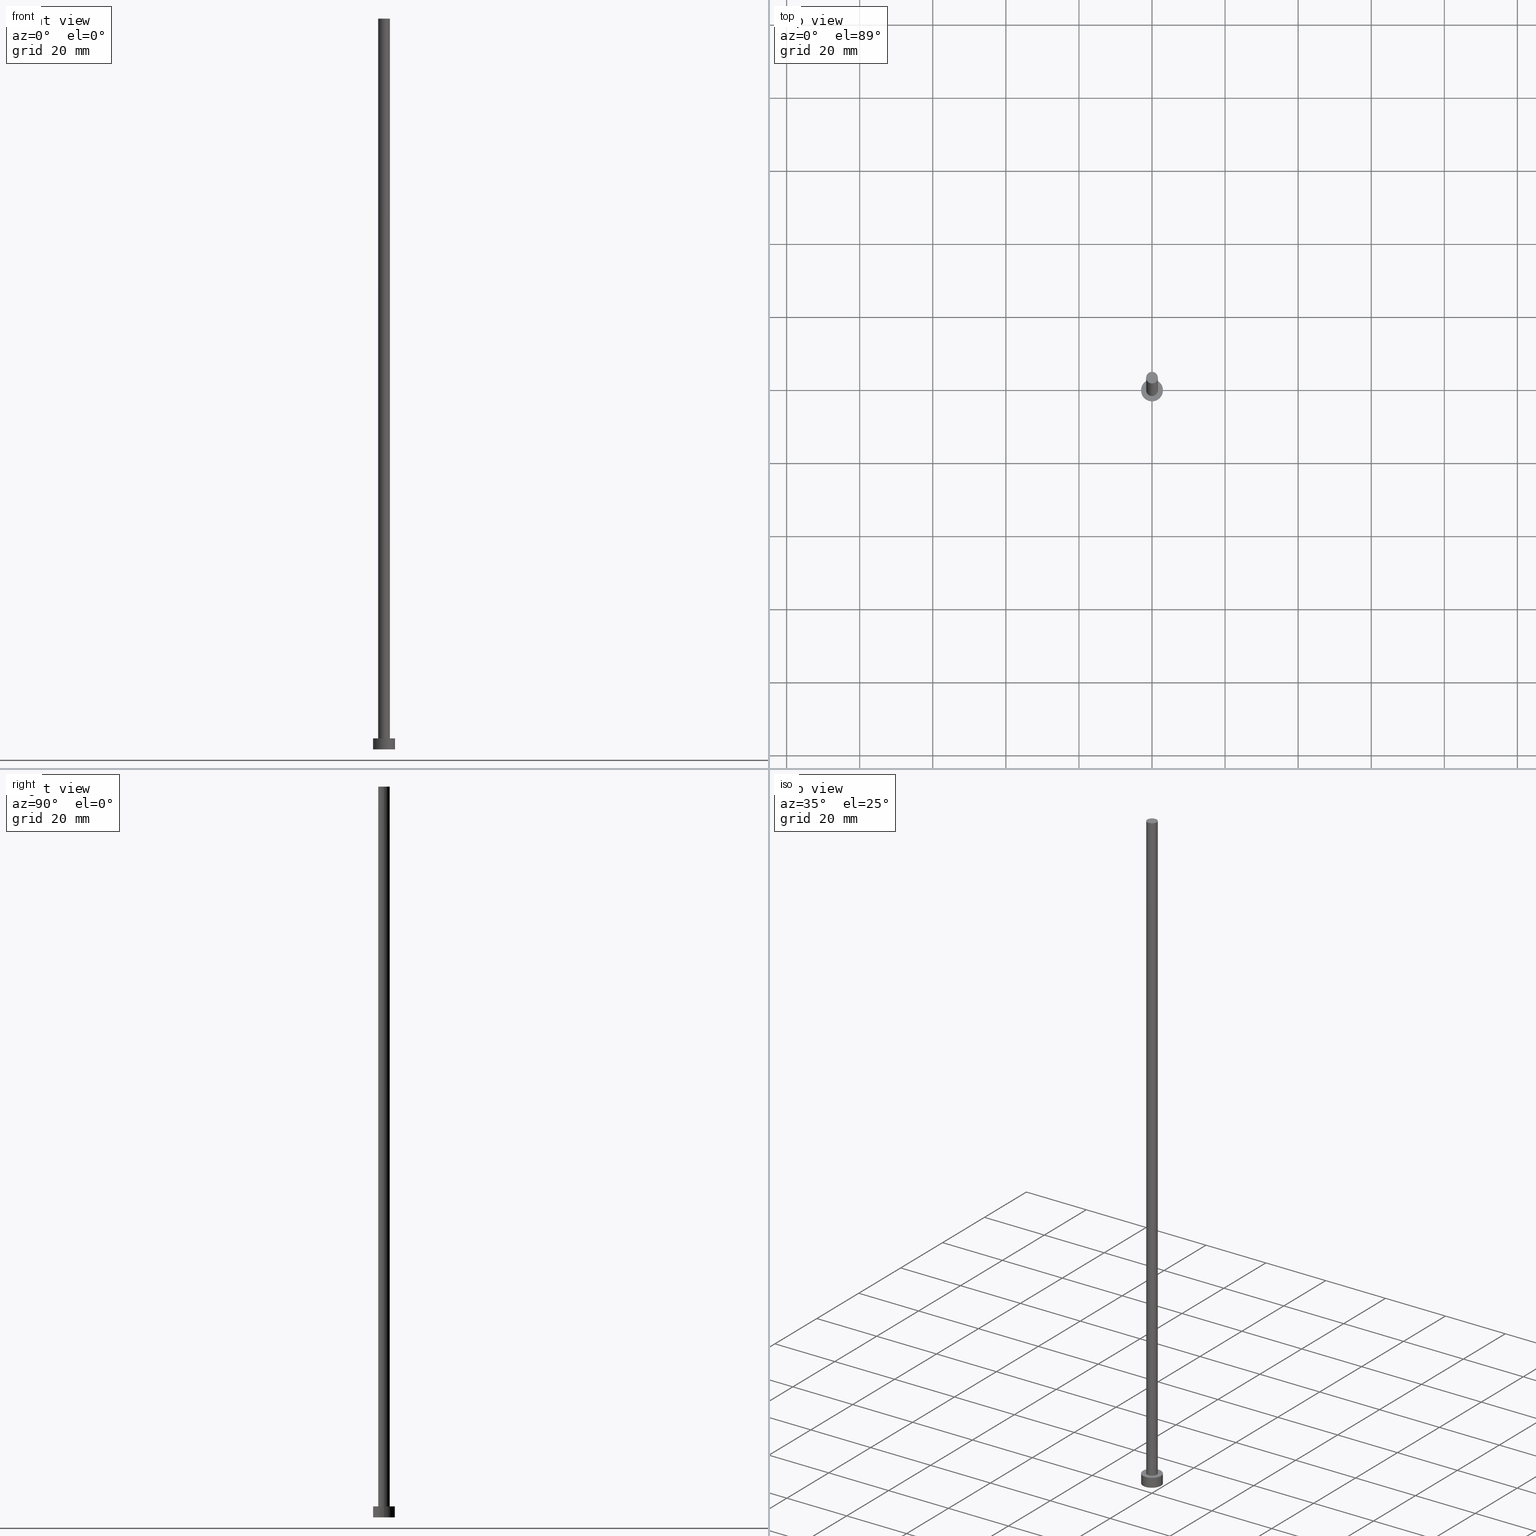
[diagram: canonical four-view strip — front | top / right | iso, engineering-drawing reading convention]
A machine part, canonical four-view strip (front | top / right | iso — engineering-drawing reading convention). The complete STEP part file that produces these views, byte-faithful:
ISO-10303-21;
HEADER;
FILE_DESCRIPTION (( 'STEP AP203' ),
    '1' );
FILE_NAME ('f816.STEP',
    '2023-02-13T16:25:23',
    ( '' ),
    ( '' ),
    'SwSTEP 2.0',
    'SolidWorks 2019',
    '' );
FILE_SCHEMA (( 'CONFIG_CONTROL_DESIGN' ));
ENDSEC;

DATA;
#1 = LINE ( 'NONE', #19, #232 ) ;
#2 = DIRECTION ( 'NONE',  ( 0.000000000000000000, 0.000000000000000000, 1.000000000000000000 ) ) ;
#3 = DESIGN_CONTEXT ( 'detailed design', #236, 'design' ) ;
#4 = DATE_AND_TIME ( #42, #21 ) ;
#5 = LOCAL_TIME ( 17, 25, 23.00000000000000000, #101 ) ;
#6 = DIRECTION ( 'NONE',  ( 0.000000000000000000, 0.000000000000000000, 1.000000000000000000 ) ) ;
#7 = CARTESIAN_POINT ( 'NONE',  ( -1.600000000000000089, 0.000000000000000000, 3.000000000000000000 ) ) ;
#8 = AXIS2_PLACEMENT_3D ( 'NONE', #157, #241, #59 ) ;
#9 = EDGE_LOOP ( 'NONE', ( #65, #58, #43, #142 ) ) ;
#10 = APPROVAL_ROLE ( '' ) ;
#11 = MANIFOLD_SOLID_BREP ( 'P�idat vysunut�m3', #194 ) ;
#12 = FACE_OUTER_BOUND ( 'NONE', #104, .T. ) ;
#13 = PRODUCT ( 'f816', 'f816', '', ( #227 ) ) ;
#14 = DIRECTION ( 'NONE',  ( -0.000000000000000000, -0.000000000000000000, -1.000000000000000000 ) ) ;
#15 = CC_DESIGN_DATE_AND_TIME_ASSIGNMENT ( #47, #120, ( #182 ) ) ;
#16 = AXIS2_PLACEMENT_3D ( 'NONE', #108, #69, #146 ) ;
#17 = DIRECTION ( 'NONE',  ( -0.000000000000000000, -0.000000000000000000, -1.000000000000000000 ) ) ;
#18 = DIRECTION ( 'NONE',  ( -0.000000000000000000, -0.000000000000000000, -1.000000000000000000 ) ) ;
#19 = CARTESIAN_POINT ( 'NONE',  ( 3.000000000000000444, 3.673940397442060361E-16, 3.000000000000000000 ) ) ;
#20 = EDGE_CURVE ( 'NONE', #168, #121, #180, .T. ) ;
#21 = LOCAL_TIME ( 17, 25, 23.00000000000000000, #151 ) ;
#22 = COORDINATED_UNIVERSAL_TIME_OFFSET ( 1, 0, .AHEAD. ) ;
#23 = APPROVAL_STATUS ( 'not_yet_approved' ) ;
#24 = ORIENTED_EDGE ( 'NONE', *, *, #238, .F. ) ;
#25 = CIRCLE ( 'NONE', #188, 3.000000000000000444 ) ;
#26 = ORIENTED_EDGE ( 'NONE', *, *, #150, .F. ) ;
#27 = ORIENTED_EDGE ( 'NONE', *, *, #20, .T. ) ;
#28 = CC_DESIGN_PERSON_AND_ORGANIZATION_ASSIGNMENT ( #57, #159, ( #13 ) ) ;
#29 = DIRECTION ( 'NONE',  ( -0.000000000000000000, -0.000000000000000000, -1.000000000000000000 ) ) ;
#30 = DIRECTION ( 'NONE',  ( -1.000000000000000000, 0.000000000000000000, 0.000000000000000000 ) ) ;
#31 = CC_DESIGN_DATE_AND_TIME_ASSIGNMENT ( #183, #179, ( #217 ) ) ;
#32 = AXIS2_PLACEMENT_3D ( 'NONE', #71, #131, #201 ) ;
#33 = CARTESIAN_POINT ( 'NONE',  ( -3.000000000000000444, 0.000000000000000000, 3.000000000000000000 ) ) ;
#34 = ORIENTED_EDGE ( 'NONE', *, *, #141, .T. ) ;
#35 = DIRECTION ( 'NONE',  ( -0.000000000000000000, -0.000000000000000000, -1.000000000000000000 ) ) ;
#36 = VECTOR ( 'NONE', #17, 1000.000000000000000 ) ;
#37 = CARTESIAN_POINT ( 'NONE',  ( 0.000000000000000000, 0.000000000000000000, 3.000000000000000000 ) ) ;
#38 = ADVANCED_FACE ( 'NONE', ( #153 ), #45, .T. ) ;
#39 = PERSON_AND_ORGANIZATION ( #252, #198 ) ;
#40 = CALENDAR_DATE ( 2023, 13, 2 ) ;
#41 = VERTEX_POINT ( 'NONE', #223 ) ;
#42 = CALENDAR_DATE ( 2023, 13, 2 ) ;
#43 = ORIENTED_EDGE ( 'NONE', *, *, #158, .T. ) ;
#44 = CALENDAR_DATE ( 2023, 13, 2 ) ;
#45 = CYLINDRICAL_SURFACE ( 'NONE', #8, 3.000000000000000444 ) ;
#46 = AXIS2_PLACEMENT_3D ( 'NONE', #51, #14, #126 ) ;
#47 = DATE_AND_TIME ( #40, #255 ) ;
#48 = ORIENTED_EDGE ( 'NONE', *, *, #86, .F. ) ;
#49 = CARTESIAN_POINT ( 'NONE',  ( -3.000000000000000444, 0.000000000000000000, 0.000000000000000000 ) ) ;
#50 = DIRECTION ( 'NONE',  ( 0.000000000000000000, 0.000000000000000000, 1.000000000000000000 ) ) ;
#51 = CARTESIAN_POINT ( 'NONE',  ( 0.000000000000000000, 0.000000000000000000, 3.000000000000000000 ) ) ;
#52 = CC_DESIGN_APPROVAL ( #164, ( #217 ) ) ;
#53 = CYLINDRICAL_SURFACE ( 'NONE', #129, 1.600000000000000089 ) ;
#54 = ORIENTED_EDGE ( 'NONE', *, *, #187, .T. ) ;
#55 = DIRECTION ( 'NONE',  ( -1.000000000000000000, 0.000000000000000000, 0.000000000000000000 ) ) ;
#56 = AXIS2_PLACEMENT_3D ( 'NONE', #213, #50, #250 ) ;
#57 = PERSON_AND_ORGANIZATION ( #252, #198 ) ;
#58 = ORIENTED_EDGE ( 'NONE', *, *, #61, .F. ) ;
#59 = DIRECTION ( 'NONE',  ( -1.000000000000000000, 0.000000000000000000, 0.000000000000000000 ) ) ;
#60 = EDGE_LOOP ( 'NONE', ( #212, #246, #220, #34 ) ) ;
#61 = EDGE_CURVE ( 'NONE', #254, #99, #237, .T. ) ;
#62 = PERSON_AND_ORGANIZATION_ROLE ( 'design_supplier' ) ;
#63 = DIRECTION ( 'NONE',  ( 0.000000000000000000, 0.000000000000000000, 1.000000000000000000 ) ) ;
#64 = CIRCLE ( 'NONE', #32, 1.600000000000000089 ) ;
#65 = ORIENTED_EDGE ( 'NONE', *, *, #207, .F. ) ;
#66 = DIRECTION ( 'NONE',  ( 1.000000000000000000, 0.000000000000000000, 0.000000000000000000 ) ) ;
#67 = DIRECTION ( 'NONE',  ( 1.000000000000000000, 0.000000000000000000, -0.000000000000000000 ) ) ;
#68 = ORIENTED_EDGE ( 'NONE', *, *, #89, .T. ) ;
#69 = DIRECTION ( 'NONE',  ( 0.000000000000000000, 0.000000000000000000, 1.000000000000000000 ) ) ;
#70 = CARTESIAN_POINT ( 'NONE',  ( 0.000000000000000000, 0.000000000000000000, 200.0000000000000000 ) ) ;
#71 = CARTESIAN_POINT ( 'NONE',  ( 0.000000000000000000, 0.000000000000000000, 200.0000000000000000 ) ) ;
#72 = VECTOR ( 'NONE', #172, 1000.000000000000000 ) ;
#73 = CARTESIAN_POINT ( 'NONE',  ( -1.600000000000000089, 0.000000000000000000, 200.0000000000000000 ) ) ;
#74 = APPROVAL_ROLE ( '' ) ;
#75 = VECTOR ( 'NONE', #123, 1000.000000000000000 ) ;
#76 = APPLICATION_PROTOCOL_DEFINITION ( 'international standard', 'config_control_design', 1994, #236 ) ;
#77 = DIRECTION ( 'NONE',  ( 1.000000000000000000, 0.000000000000000000, 0.000000000000000000 ) ) ;
#78 = PERSON_AND_ORGANIZATION ( #252, #198 ) ;
#79 = VERTEX_POINT ( 'NONE', #7 ) ;
#80 = PERSON_AND_ORGANIZATION ( #252, #198 ) ;
#81 = DIRECTION ( 'NONE',  ( 0.000000000000000000, 0.000000000000000000, 1.000000000000000000 ) ) ;
#82 = PRODUCT_DEFINITION_FORMATION_WITH_SPECIFIED_SOURCE ( 'LIBOVOLN�', '', #13, .NOT_KNOWN. ) ;
#83 = EDGE_LOOP ( 'NONE', ( #161, #196 ) ) ;
#84 = SHAPE_DEFINITION_REPRESENTATION ( #195, #95 ) ;
#85 = CC_DESIGN_SECURITY_CLASSIFICATION ( #182, ( #82 ) ) ;
#86 = EDGE_CURVE ( 'NONE', #205, #41, #92, .T. ) ;
#87 = FACE_OUTER_BOUND ( 'NONE', #60, .T. ) ;
#88 = CYLINDRICAL_SURFACE ( 'NONE', #119, 1.600000000000000089 ) ;
#89 = EDGE_CURVE ( 'NONE', #177, #79, #107, .T. ) ;
#90 = CIRCLE ( 'NONE', #16, 3.000000000000000444 ) ;
#91 = FACE_BOUND ( 'NONE', #83, .T. ) ;
#92 = CIRCLE ( 'NONE', #100, 1.600000000000000089 ) ;
#93 = DIRECTION ( 'NONE',  ( 1.000000000000000000, 0.000000000000000000, -0.000000000000000000 ) ) ;
#94 = CARTESIAN_POINT ( 'NONE',  ( 1.600000000000000089, 1.959434878635765230E-16, 200.0000000000000000 ) ) ;
#95 = ADVANCED_BREP_SHAPE_REPRESENTATION ( 'f816', ( #11, #109 ), #206 ) ;
#96 = PERSON_AND_ORGANIZATION_ROLE ( 'creator' ) ;
#97 = ORIENTED_EDGE ( 'NONE', *, *, #207, .T. ) ;
#98 = APPLICATION_PROTOCOL_DEFINITION ( 'international standard', 'config_control_design', 1994, #202 ) ;
#99 = VERTEX_POINT ( 'NONE', #128 ) ;
#100 = AXIS2_PLACEMENT_3D ( 'NONE', #244, #63, #140 ) ;
#101 = COORDINATED_UNIVERSAL_TIME_OFFSET ( 1, 0, .AHEAD. ) ;
#102 = CARTESIAN_POINT ( 'NONE',  ( 0.000000000000000000, 0.000000000000000000, 3.000000000000000000 ) ) ;
#103 = DIRECTION ( 'NONE',  ( 0.000000000000000000, 0.000000000000000000, 1.000000000000000000 ) ) ;
#104 = EDGE_LOOP ( 'NONE', ( #26, #147 ) ) ;
#105 = EDGE_LOOP ( 'NONE', ( #189, #249 ) ) ;
#106 = CYLINDRICAL_SURFACE ( 'NONE', #46, 3.000000000000000444 ) ;
#107 = CIRCLE ( 'NONE', #156, 1.600000000000000089 ) ;
#108 = CARTESIAN_POINT ( 'NONE',  ( 0.000000000000000000, 0.000000000000000000, 0.000000000000000000 ) ) ;
#109 = AXIS2_PLACEMENT_3D ( 'NONE', #208, #6, #225 ) ;
#110 = CALENDAR_DATE ( 2023, 13, 2 ) ;
#111 = LINE ( 'NONE', #132, #72 ) ;
#112 = CARTESIAN_POINT ( 'NONE',  ( -3.000000000000000444, 0.000000000000000000, 3.000000000000000000 ) ) ;
#113 = SECURITY_CLASSIFICATION_LEVEL ( 'unclassified' ) ;
#114 = EDGE_LOOP ( 'NONE', ( #211, #191 ) ) ;
#115 = APPROVAL_DATE_TIME ( #4, #164 ) ;
#116 = CC_DESIGN_PERSON_AND_ORGANIZATION_ASSIGNMENT ( #39, #96, ( #217 ) ) ;
#117 = AXIS2_PLACEMENT_3D ( 'NONE', #70, #169, #67 ) ;
#118 = PERSON_AND_ORGANIZATION_ROLE ( 'creator' ) ;
#119 = AXIS2_PLACEMENT_3D ( 'NONE', #144, #35, #55 ) ;
#120 = DATE_TIME_ROLE ( 'classification_date' ) ;
#121 = VERTEX_POINT ( 'NONE', #49 ) ;
#122 = AXIS2_PLACEMENT_3D ( 'NONE', #231, #166, #235 ) ;
#123 = DIRECTION ( 'NONE',  ( -0.000000000000000000, -0.000000000000000000, -1.000000000000000000 ) ) ;
#124 = LOCAL_TIME ( 17, 25, 23.00000000000000000, #162 ) ;
#125 = DIRECTION ( 'NONE',  ( 1.000000000000000000, 0.000000000000000000, 0.000000000000000000 ) ) ;
#126 = DIRECTION ( 'NONE',  ( -1.000000000000000000, 0.000000000000000000, 0.000000000000000000 ) ) ;
#127 = EDGE_CURVE ( 'NONE', #99, #254, #25, .T. ) ;
#128 = CARTESIAN_POINT ( 'NONE',  ( 3.000000000000000444, 3.673940397442060361E-16, 3.000000000000000000 ) ) ;
#129 = AXIS2_PLACEMENT_3D ( 'NONE', #234, #29, #30 ) ;
#130 = FACE_OUTER_BOUND ( 'NONE', #105, .T. ) ;
#131 = DIRECTION ( 'NONE',  ( 0.000000000000000000, 0.000000000000000000, 1.000000000000000000 ) ) ;
#132 = CARTESIAN_POINT ( 'NONE',  ( 1.600000000000000089, 1.959434878635765230E-16, 200.0000000000000000 ) ) ;
#133 = ADVANCED_FACE ( 'NONE', ( #130 ), #253, .T. ) ;
#134 = ADVANCED_FACE ( 'NONE', ( #12 ), #143, .F. ) ;
#135 =( NAMED_UNIT ( * ) PLANE_ANGLE_UNIT ( ) SI_UNIT ( $, .RADIAN. ) );
#136 = AXIS2_PLACEMENT_3D ( 'NONE', #102, #103, #66 ) ;
#137 = CC_DESIGN_PERSON_AND_ORGANIZATION_ASSIGNMENT ( #138, #118, ( #82 ) ) ;
#138 = PERSON_AND_ORGANIZATION ( #252, #198 ) ;
#139 = PERSON_AND_ORGANIZATION ( #252, #198 ) ;
#140 = DIRECTION ( 'NONE',  ( 1.000000000000000000, 0.000000000000000000, 0.000000000000000000 ) ) ;
#141 = EDGE_CURVE ( 'NONE', #79, #177, #170, .T. ) ;
#142 = ORIENTED_EDGE ( 'NONE', *, *, #150, .T. ) ;
#143 = PLANE ( 'NONE',  #122 ) ;
#144 = CARTESIAN_POINT ( 'NONE',  ( 0.000000000000000000, 0.000000000000000000, 200.0000000000000000 ) ) ;
#145 = LOCAL_TIME ( 17, 25, 23.00000000000000000, #243 ) ;
#146 = DIRECTION ( 'NONE',  ( 1.000000000000000000, 0.000000000000000000, 0.000000000000000000 ) ) ;
#147 = ORIENTED_EDGE ( 'NONE', *, *, #20, .F. ) ;
#148 = APPROVAL_PERSON_ORGANIZATION ( #78, #239, #74 ) ;
#149 =( LENGTH_UNIT ( ) NAMED_UNIT ( * ) SI_UNIT ( .MILLI., .METRE. ) );
#150 = EDGE_CURVE ( 'NONE', #121, #168, #90, .T. ) ;
#151 = COORDINATED_UNIVERSAL_TIME_OFFSET ( 1, 0, .AHEAD. ) ;
#152 = PERSON_AND_ORGANIZATION ( #252, #198 ) ;
#153 = FACE_OUTER_BOUND ( 'NONE', #229, .T. ) ;
#154 = DATE_AND_TIME ( #44, #145 ) ;
#155 = APPROVAL_STATUS ( 'not_yet_approved' ) ;
#156 = AXIS2_PLACEMENT_3D ( 'NONE', #228, #81, #160 ) ;
#157 = CARTESIAN_POINT ( 'NONE',  ( 0.000000000000000000, 0.000000000000000000, 3.000000000000000000 ) ) ;
#158 = EDGE_CURVE ( 'NONE', #254, #121, #214, .T. ) ;
#159 = PERSON_AND_ORGANIZATION_ROLE ( 'design_owner' ) ;
#160 = DIRECTION ( 'NONE',  ( 1.000000000000000000, 0.000000000000000000, 0.000000000000000000 ) ) ;
#161 = ORIENTED_EDGE ( 'NONE', *, *, #141, .F. ) ;
#162 = COORDINATED_UNIVERSAL_TIME_OFFSET ( 1, 0, .AHEAD. ) ;
#163 = FACE_OUTER_BOUND ( 'NONE', #185, .T. ) ;
#164 = APPROVAL ( #23, 'NEUR�EN�' ) ;
#165 = ADVANCED_FACE ( 'NONE', ( #87 ), #53, .T. ) ;
#166 = DIRECTION ( 'NONE',  ( 0.000000000000000000, 0.000000000000000000, 1.000000000000000000 ) ) ;
#167 = CC_DESIGN_PERSON_AND_ORGANIZATION_ASSIGNMENT ( #80, #62, ( #82 ) ) ;
#168 = VERTEX_POINT ( 'NONE', #215 ) ;
#169 = DIRECTION ( 'NONE',  ( 0.000000000000000000, 0.000000000000000000, 1.000000000000000000 ) ) ;
#170 = CIRCLE ( 'NONE', #56, 1.600000000000000089 ) ;
#171 = ADVANCED_FACE ( 'NONE', ( #190 ), #106, .T. ) ;
#172 = DIRECTION ( 'NONE',  ( -0.000000000000000000, -0.000000000000000000, -1.000000000000000000 ) ) ;
#173 = CC_DESIGN_PERSON_AND_ORGANIZATION_ASSIGNMENT ( #139, #203, ( #182 ) ) ;
#174 = APPROVAL ( #230, 'NEUR�EN�' ) ;
#175 = PLANE ( 'NONE',  #248 ) ;
#176 = APPROVAL_PERSON_ORGANIZATION ( #152, #164, #240 ) ;
#177 = VERTEX_POINT ( 'NONE', #192 ) ;
#178 = CC_DESIGN_APPROVAL ( #174, ( #182 ) ) ;
#179 = DATE_TIME_ROLE ( 'creation_date' ) ;
#180 = CIRCLE ( 'NONE', #224, 3.000000000000000444 ) ;
#181 = DIRECTION ( 'NONE',  ( 0.000000000000000000, 0.000000000000000000, 1.000000000000000000 ) ) ;
#182 = SECURITY_CLASSIFICATION ( '', '', #113 ) ;
#183 = DATE_AND_TIME ( #221, #5 ) ;
#184 =( NAMED_UNIT ( * ) SI_UNIT ( $, .STERADIAN. ) SOLID_ANGLE_UNIT ( ) );
#185 = EDGE_LOOP ( 'NONE', ( #48, #54, #68, #24 ) ) ;
#186 = ADVANCED_FACE ( 'NONE', ( #163 ), #88, .T. ) ;
#187 = EDGE_CURVE ( 'NONE', #205, #177, #111, .T. ) ;
#188 = AXIS2_PLACEMENT_3D ( 'NONE', #197, #233, #125 ) ;
#189 = ORIENTED_EDGE ( 'NONE', *, *, #199, .T. ) ;
#190 = FACE_OUTER_BOUND ( 'NONE', #9, .T. ) ;
#191 = ORIENTED_EDGE ( 'NONE', *, *, #127, .T. ) ;
#192 = CARTESIAN_POINT ( 'NONE',  ( 1.600000000000000089, 1.959434878635765230E-16, 3.000000000000000000 ) ) ;
#193 = DATE_AND_TIME ( #110, #124 ) ;
#194 = CLOSED_SHELL ( 'NONE', ( #186, #38, #171, #222, #134, #165, #133 ) ) ;
#195 = PRODUCT_DEFINITION_SHAPE ( 'NONE', 'NONE',  #217 ) ;
#196 = ORIENTED_EDGE ( 'NONE', *, *, #89, .F. ) ;
#197 = CARTESIAN_POINT ( 'NONE',  ( 0.000000000000000000, 0.000000000000000000, 3.000000000000000000 ) ) ;
#198 = ORGANIZATION ( 'NEUR�EN�', 'NEUR�EN�', '' ) ;
#199 = EDGE_CURVE ( 'NONE', #41, #205, #64, .T. ) ;
#200 = APPROVAL_PERSON_ORGANIZATION ( #209, #174, #10 ) ;
#201 = DIRECTION ( 'NONE',  ( 1.000000000000000000, 0.000000000000000000, 0.000000000000000000 ) ) ;
#202 = APPLICATION_CONTEXT ( 'configuration controlled 3d designs of mechanical parts and assemblies' ) ;
#203 = PERSON_AND_ORGANIZATION_ROLE ( 'classification_officer' ) ;
#204 = CARTESIAN_POINT ( 'NONE',  ( 0.000000000000000000, 0.000000000000000000, 0.000000000000000000 ) ) ;
#205 = VERTEX_POINT ( 'NONE', #94 ) ;
#206 =( GEOMETRIC_REPRESENTATION_CONTEXT ( 3 ) GLOBAL_UNCERTAINTY_ASSIGNED_CONTEXT ( ( #251 ) ) GLOBAL_UNIT_ASSIGNED_CONTEXT ( ( #149, #135, #184 ) ) REPRESENTATION_CONTEXT ( 'NONE', 'WORKASPACE' ) );
#207 = EDGE_CURVE ( 'NONE', #99, #168, #1, .T. ) ;
#208 = CARTESIAN_POINT ( 'NONE',  ( 0.000000000000000000, 0.000000000000000000, 0.000000000000000000 ) ) ;
#209 = PERSON_AND_ORGANIZATION ( #252, #198 ) ;
#210 = ORIENTED_EDGE ( 'NONE', *, *, #158, .F. ) ;
#211 = ORIENTED_EDGE ( 'NONE', *, *, #61, .T. ) ;
#212 = ORIENTED_EDGE ( 'NONE', *, *, #187, .F. ) ;
#213 = CARTESIAN_POINT ( 'NONE',  ( 0.000000000000000000, 0.000000000000000000, 3.000000000000000000 ) ) ;
#214 = LINE ( 'NONE', #33, #75 ) ;
#215 = CARTESIAN_POINT ( 'NONE',  ( 3.000000000000000444, 3.673940397442060361E-16, 0.000000000000000000 ) ) ;
#216 = FACE_OUTER_BOUND ( 'NONE', #114, .T. ) ;
#217 = PRODUCT_DEFINITION ( 'NEZN�M�', '', #82, #3 ) ;
#218 = LINE ( 'NONE', #73, #36 ) ;
#219 = PRODUCT_RELATED_PRODUCT_CATEGORY ( 'detail', '', ( #13 ) ) ;
#220 = ORIENTED_EDGE ( 'NONE', *, *, #238, .T. ) ;
#221 = CALENDAR_DATE ( 2023, 13, 2 ) ;
#222 = ADVANCED_FACE ( 'NONE', ( #91, #216 ), #175, .T. ) ;
#223 = CARTESIAN_POINT ( 'NONE',  ( -1.600000000000000089, 0.000000000000000000, 200.0000000000000000 ) ) ;
#224 = AXIS2_PLACEMENT_3D ( 'NONE', #204, #181, #77 ) ;
#225 = DIRECTION ( 'NONE',  ( 1.000000000000000000, 0.000000000000000000, 0.000000000000000000 ) ) ;
#226 = CC_DESIGN_APPROVAL ( #239, ( #82 ) ) ;
#227 = MECHANICAL_CONTEXT ( 'NONE', #202, 'mechanical' ) ;
#228 = CARTESIAN_POINT ( 'NONE',  ( 0.000000000000000000, 0.000000000000000000, 3.000000000000000000 ) ) ;
#229 = EDGE_LOOP ( 'NONE', ( #245, #97, #27, #210 ) ) ;
#230 = APPROVAL_STATUS ( 'not_yet_approved' ) ;
#231 = CARTESIAN_POINT ( 'NONE',  ( 0.000000000000000000, 0.000000000000000000, 0.000000000000000000 ) ) ;
#232 = VECTOR ( 'NONE', #18, 1000.000000000000000 ) ;
#233 = DIRECTION ( 'NONE',  ( 0.000000000000000000, 0.000000000000000000, 1.000000000000000000 ) ) ;
#234 = CARTESIAN_POINT ( 'NONE',  ( 0.000000000000000000, 0.000000000000000000, 200.0000000000000000 ) ) ;
#235 = DIRECTION ( 'NONE',  ( 1.000000000000000000, 0.000000000000000000, -0.000000000000000000 ) ) ;
#236 = APPLICATION_CONTEXT ( 'configuration controlled 3d designs of mechanical parts and assemblies' ) ;
#237 = CIRCLE ( 'NONE', #136, 3.000000000000000444 ) ;
#238 = EDGE_CURVE ( 'NONE', #41, #79, #218, .T. ) ;
#239 = APPROVAL ( #155, 'NEUR�EN�' ) ;
#240 = APPROVAL_ROLE ( '' ) ;
#241 = DIRECTION ( 'NONE',  ( -0.000000000000000000, -0.000000000000000000, -1.000000000000000000 ) ) ;
#242 = APPROVAL_DATE_TIME ( #154, #239 ) ;
#243 = COORDINATED_UNIVERSAL_TIME_OFFSET ( 1, 0, .AHEAD. ) ;
#244 = CARTESIAN_POINT ( 'NONE',  ( 0.000000000000000000, 0.000000000000000000, 200.0000000000000000 ) ) ;
#245 = ORIENTED_EDGE ( 'NONE', *, *, #127, .F. ) ;
#246 = ORIENTED_EDGE ( 'NONE', *, *, #199, .F. ) ;
#247 = APPROVAL_DATE_TIME ( #193, #174 ) ;
#248 = AXIS2_PLACEMENT_3D ( 'NONE', #37, #2, #93 ) ;
#249 = ORIENTED_EDGE ( 'NONE', *, *, #86, .T. ) ;
#250 = DIRECTION ( 'NONE',  ( 1.000000000000000000, 0.000000000000000000, 0.000000000000000000 ) ) ;
#251 = UNCERTAINTY_MEASURE_WITH_UNIT (LENGTH_MEASURE( 1.000000000000000082E-05 ), #149, 'distance_accuracy_value', 'NONE');
#252 = PERSON ( 'NEUR�EN�', 'NEUR�EN�', 'NEUR�EN�', ('NEUR�EN�'), ('NEUR�EN�'), ('NEUR�EN�') ) ;
#253 = PLANE ( 'NONE',  #117 ) ;
#254 = VERTEX_POINT ( 'NONE', #112 ) ;
#255 = LOCAL_TIME ( 17, 25, 23.00000000000000000, #22 ) ;
ENDSEC;
END-ISO-10303-21;
